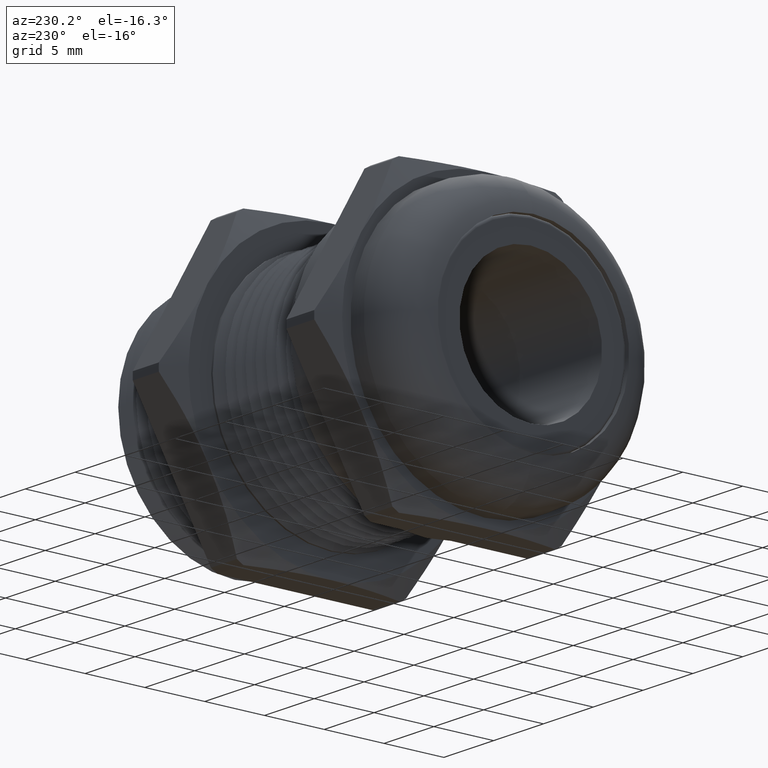
[diagram: clean part render]
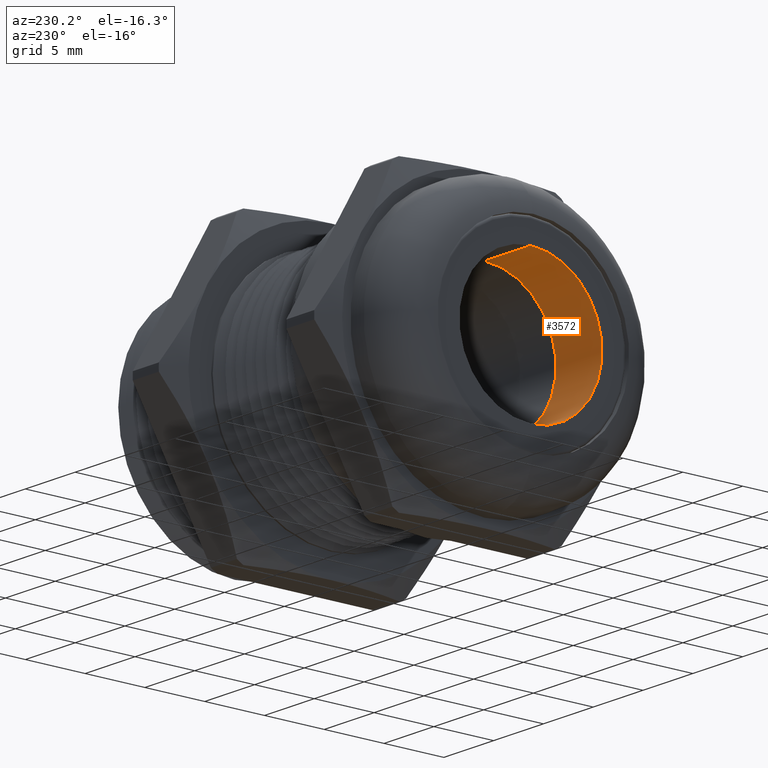
[diagram: same view with one face highlighted and labeled with its STEP entity id]
A machine part, auxiliary view. The second image highlights one B-rep face of the part: STEP entity #3572.
In plain terms, the highlighted cylindrical surface (partial cylindrical patch) has radius 5.969 mm, axis along (-1, 0, 0).
Its self-contained STEP definition (entity closure, byte-faithful):
#3250 = CARTESIAN_POINT ( 'NONE',  ( -0.3979999999999999600, 0.0000000000000000000, 0.2349999999999999600 ) ) ;
#3251 = DIRECTION ( 'NONE',  ( 0.0000000000000000000, 0.0000000000000000000, 1.000000000000000000 ) ) ;
#3252 = DIRECTION ( 'NONE',  ( -1.000000000000000000, 0.0000000000000000000, 0.0000000000000000000 ) ) ;
#3253 = AXIS2_PLACEMENT_3D ( 'NONE', #3259, #3252, #3251 ) ;
#3254 = CYLINDRICAL_SURFACE ( 'NONE', #3253, 0.2349999999999999600 ) ;
#3255 = FACE_OUTER_BOUND ( 'NONE', #3497, .T. ) ;
#3259 = CARTESIAN_POINT ( 'NONE',  ( -2.719493435091831800, 0.0000000000000000000, 0.0000000000000000000 ) ) ;
#3282 = DIRECTION ( 'NONE',  ( -1.000000000000000000, 0.0000000000000000000, 0.0000000000000000000 ) ) ;
#3283 = VECTOR ( 'NONE', #3282, 39.37007874015748100 ) ;
#3284 = CARTESIAN_POINT ( 'NONE',  ( -2.719493435091831800, 0.0000000000000000000, 0.2349999999999999600 ) ) ;
#3285 = LINE ( 'NONE', #3284, #3283 ) ;
#3286 = CARTESIAN_POINT ( 'NONE',  ( -0.5799999999999998500, 0.0000000000000000000, 0.2349999999999999600 ) ) ;
#3310 = DIRECTION ( 'NONE',  ( -1.000000000000000000, 0.0000000000000000000, 0.0000000000000000000 ) ) ;
#3311 = VECTOR ( 'NONE', #3310, 39.37007874015748100 ) ;
#3312 = CARTESIAN_POINT ( 'NONE',  ( -2.719493435091831800, 2.877919977996279200E-017, -0.2349999999999999600 ) ) ;
#3313 = LINE ( 'NONE', #3312, #3311 ) ;
#3324 = DIRECTION ( 'NONE',  ( 0.0000000000000000000, 0.0000000000000000000, 1.000000000000000000 ) ) ;
#3325 = DIRECTION ( 'NONE',  ( -1.000000000000000000, 0.0000000000000000000, 0.0000000000000000000 ) ) ;
#3326 = AXIS2_PLACEMENT_3D ( 'NONE', #3333, #3325, #3324 ) ;
#3327 = CIRCLE ( 'NONE', #3326, 0.2349999999999999600 ) ;
#3333 = CARTESIAN_POINT ( 'NONE',  ( -0.5799999999999998500, 0.0000000000000000000, 0.0000000000000000000 ) ) ;
#3335 = CARTESIAN_POINT ( 'NONE',  ( -0.5799999999999998500, 2.877919977996279200E-017, -0.2349999999999999600 ) ) ;
#3336 = DIRECTION ( 'NONE',  ( 0.0000000000000000000, 0.0000000000000000000, 1.000000000000000000 ) ) ;
#3337 = DIRECTION ( 'NONE',  ( -1.000000000000000000, 0.0000000000000000000, 0.0000000000000000000 ) ) ;
#3338 = CARTESIAN_POINT ( 'NONE',  ( -0.3979999999999999600, 0.0000000000000000000, 0.0000000000000000000 ) ) ;
#3339 = AXIS2_PLACEMENT_3D ( 'NONE', #3338, #3337, #3336 ) ;
#3340 = CIRCLE ( 'NONE', #3339, 0.2349999999999999600 ) ;
#3353 = CARTESIAN_POINT ( 'NONE',  ( -0.3979999999999999600, 2.877919977996279200E-017, -0.2349999999999999600 ) ) ;
#3497 = EDGE_LOOP ( 'NONE', ( #3618, #3608, #3586, #3598 ) ) ;
#3572 = ADVANCED_FACE ( 'NONE', ( #3255 ), #3254, .F. ) ;
#3573 = VERTEX_POINT ( 'NONE', #3250 ) ;
#3585 = VERTEX_POINT ( 'NONE', #3286 ) ;
#3586 = ORIENTED_EDGE ( 'NONE', *, *, #3597, .T. ) ;
#3587 = EDGE_CURVE ( 'NONE', #3573, #3585, #3285, .T. ) ;
#3589 = EDGE_CURVE ( 'NONE', #3621, #3573, #3340, .T. ) ;
#3592 = VERTEX_POINT ( 'NONE', #3335 ) ;
#3597 = EDGE_CURVE ( 'NONE', #3592, #3585, #3327, .T. ) ;
#3598 = ORIENTED_EDGE ( 'NONE', *, *, #3587, .F. ) ;
#3608 = ORIENTED_EDGE ( 'NONE', *, *, #3609, .T. ) ;
#3609 = EDGE_CURVE ( 'NONE', #3621, #3592, #3313, .T. ) ;
#3618 = ORIENTED_EDGE ( 'NONE', *, *, #3589, .F. ) ;
#3621 = VERTEX_POINT ( 'NONE', #3353 ) ;